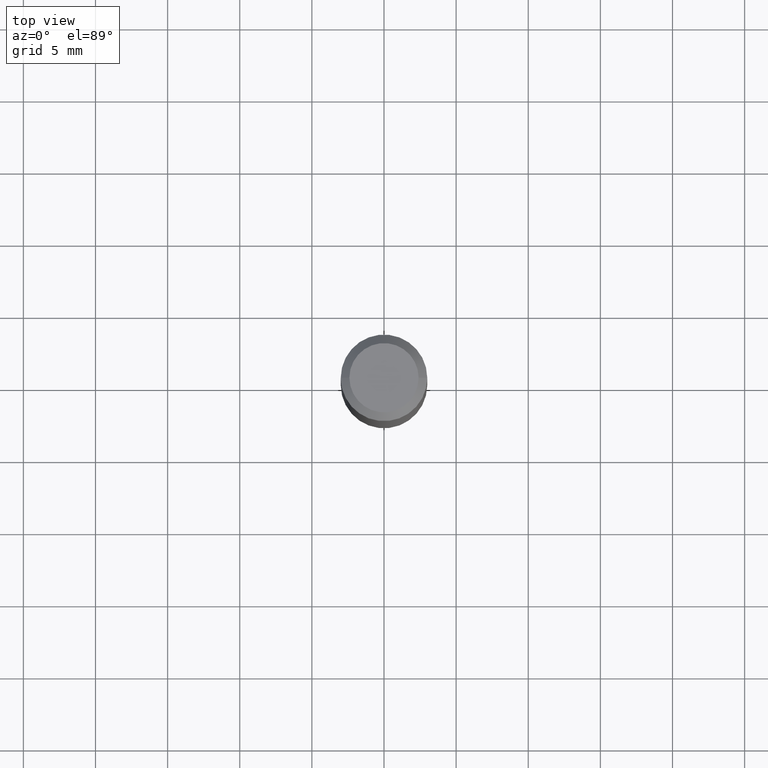
[diagram: clean part render]
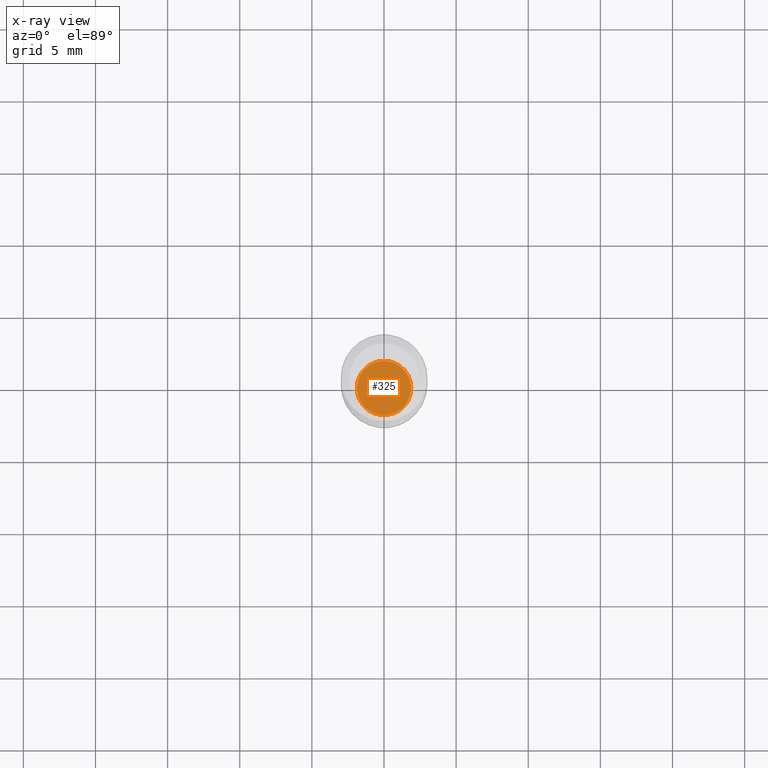
[diagram: x-ray — body ghosted, one internal face saturated and labeled with its STEP entity id]
A machine part, top view, then the same camera in x-ray: the body is ghosted and one INTERNAL B-rep face — a face not visible from any outside direction — is saturated and labeled: STEP entity #325.
In plain terms, the highlighted planar face has unit normal (-0, 0, 1).
Its self-contained STEP definition (entity closure, byte-faithful):
#34 = DIRECTION ( 'NONE',  ( 1.000000000000000000, -6.982962677686265922E-15, 4.876176775795935793E-29 ) ) ;
#39 = VERTEX_POINT ( 'NONE', #404 ) ;
#68 = DIRECTION ( 'NONE',  ( -2.445468806185136597E-29, 3.491481338843145583E-15, 1.000000000000000000 ) ) ;
#143 = EDGE_CURVE ( 'NONE', #39, #469, #481, .T. ) ;
#192 = ORIENTED_EDGE ( 'NONE', *, *, #501, .F. ) ;
#198 = FACE_OUTER_BOUND ( 'NONE', #447, .T. ) ;
#220 = AXIS2_PLACEMENT_3D ( 'NONE', #255, #420, #497 ) ;
#227 = DIRECTION ( 'NONE',  ( 1.000000000000000000, -6.982962677686268288E-15, 0.000000000000000000 ) ) ;
#246 = AXIS2_PLACEMENT_3D ( 'NONE', #509, #281, #34 ) ;
#255 = CARTESIAN_POINT ( 'NONE',  ( 3.984891419678679941E-29, -5.689368841644905745E-15, -1.629499999999999948 ) ) ;
#277 = PLANE ( 'NONE',  #246 ) ;
#281 = DIRECTION ( 'NONE',  ( -2.438088387897960049E-29, 3.491481338843145188E-15, 1.000000000000000000 ) ) ;
#292 = AXIS2_PLACEMENT_3D ( 'NONE', #395, #68, #227 ) ;
#325 = ADVANCED_FACE ( 'NONE', ( #198 ), #277, .F. ) ;
#341 = CIRCLE ( 'NONE', #292, 0.07430000000000000493 ) ;
#395 = CARTESIAN_POINT ( 'NONE',  ( 3.984891419678679941E-29, -5.689368841644905745E-15, -1.629499999999999948 ) ) ;
#404 = CARTESIAN_POINT ( 'NONE',  ( -0.07430000000000000493, -5.158786361801041451E-15, -1.629499999999999948 ) ) ;
#420 = DIRECTION ( 'NONE',  ( -2.445468806185136597E-29, 3.491481338843145583E-15, 1.000000000000000000 ) ) ;
#425 = CARTESIAN_POINT ( 'NONE',  ( 0.07430000000000000493, -6.208202968596995538E-15, -1.629499999999999948 ) ) ;
#447 = EDGE_LOOP ( 'NONE', ( #192, #491 ) ) ;
#469 = VERTEX_POINT ( 'NONE', #425 ) ;
#481 = CIRCLE ( 'NONE', #220, 0.07430000000000000493 ) ;
#491 = ORIENTED_EDGE ( 'NONE', *, *, #143, .F. ) ;
#497 = DIRECTION ( 'NONE',  ( 1.000000000000000000, -6.982962677686268288E-15, 0.000000000000000000 ) ) ;
#501 = EDGE_CURVE ( 'NONE', #469, #39, #341, .T. ) ;
#509 = CARTESIAN_POINT ( 'NONE',  ( 8.168603628363352052E-29, 3.019451633024921150E-16, -1.629500000000000171 ) ) ;